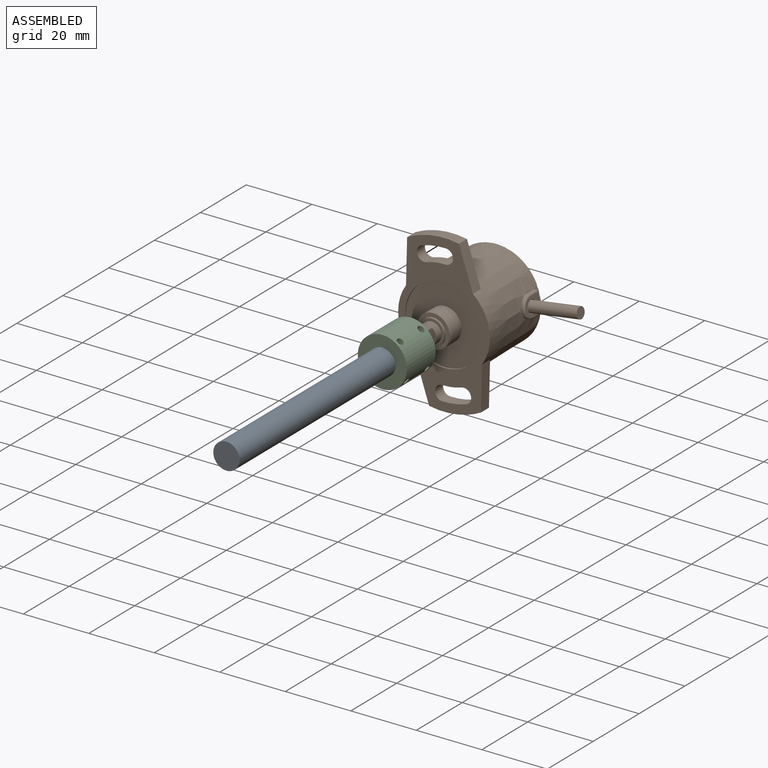
[diagram: assembled view]
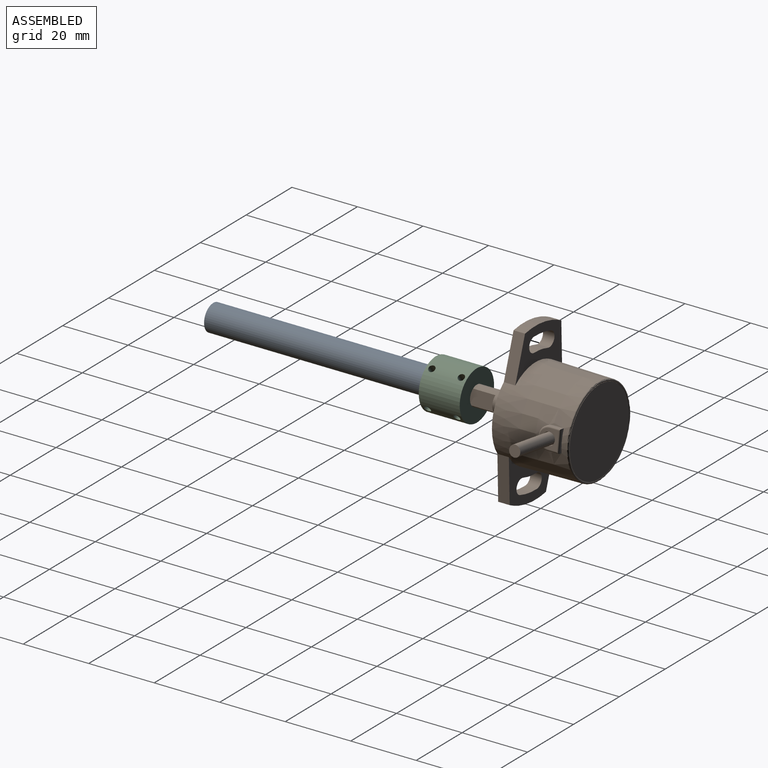
[diagram: assembled view, second angle]
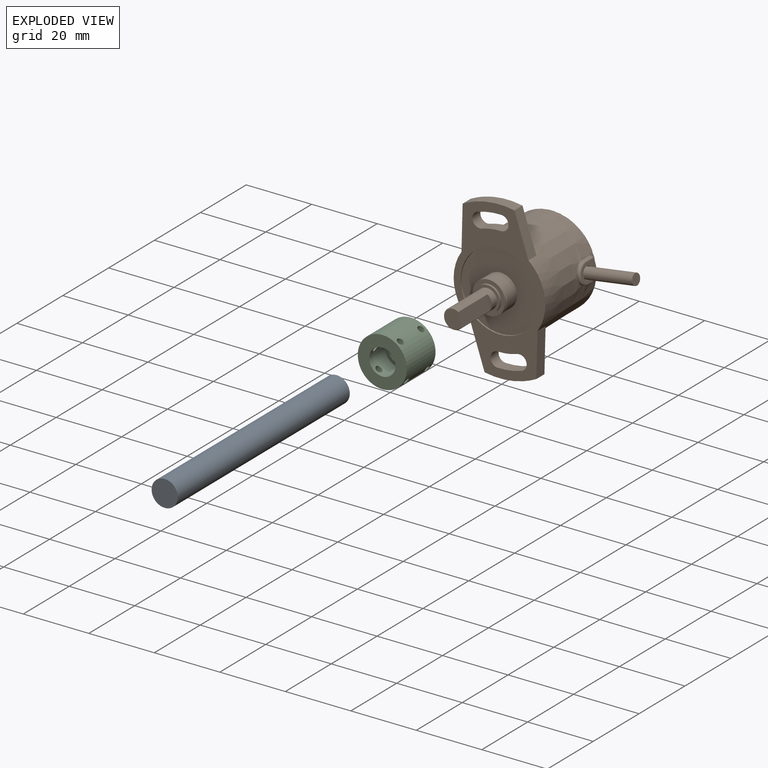
[diagram: exploded view]
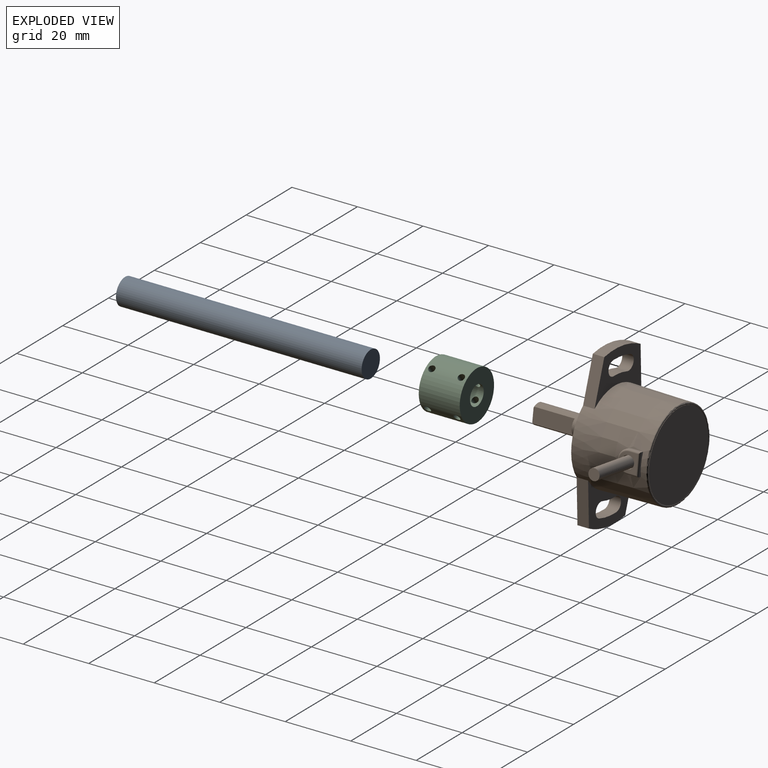
[diagram: exploded view, second angle]
ASSEMBLY  parts=3 mates=2
PART A: 3 faces, bbox 8x75x8 mm
  f0: plane 8x8mm, normal (0,-1,0), area 50.3mm2, adj f2
  f1: plane 8x8mm, normal (0,1,0), area 50.3mm2, adj f2
  f2: cylinder r=4mm len=75mm, axis (0,-1,0), area 1885mm2, adj f0,f1
PART B: 81 faces, bbox 44.5x43.1x48 mm
  f0: cylinder r=1.7mm len=16.66mm, axis (-1,0,0), area 178mm2, adj f1,f32
  f1: plane 3.4x3.4mm, normal (1,0,0), area 9.1mm2, adj f0
  f2: cylinder r=3.24mm len=1.88mm, axis (0,1,0), area 1.8mm2, adj f13,f14,f15,f16,f25,f29
  f3: cylinder r=5mm len=10mm, axis (0,1,0), area 15.7mm2, adj f4,f5
  f4: plane 10x10mm, normal (0,1,0), area 50.3mm2, adj f3,f31
  f5: plane 10x10mm, normal (0,-1,0), area 37.5mm2, adj f3,f7,f8,f9,f10,f11,f12
  f6: plane 1.63x0.86mm, normal (0,1,0), area 0.6mm2, adj f7,f8,f13,f25
  f7: cylinder r=3mm len=6mm, axis (0,1,0), area 1.9mm2, adj f5,f6,f14,f15,f17,f20,f26
  f8: plane 0.9x0.7mm, normal (-0.14,0,0.99), area 0.6mm2, adj f5,f6,f9,f16,f25,f28
  f9: plane 0.7x0.45mm, normal (-0.71,0,0.71), area 0.4mm2, adj f5,f8,f10,f16
  f10: cylinder r=3.8mm len=7.6mm, axis (0,1,0), area 12.5mm2, adj f5,f9,f11,f16
  f11: plane 0.7x0.45mm, normal (-0.71,0,-0.71), area 0.4mm2, adj f5,f10,f12,f16
  f12: plane 0.9x0.7mm, normal (-0.14,0,-0.99), area 0.6mm2, adj f5,f11,f16,f17,f25,f28
  f13: cylinder r=0.7mm len=0.93mm, axis (0,1,0), area 0.9mm2, adj f2,f6,f14,f16,f25,f29
  f14: plane 0.88x0.15mm, normal (0,-1,0), area 0.1mm2, adj f2,f7,f13
  f15: plane 5.92x2.52mm, normal (0,1,0), area 2.9mm2, adj f2,f7,f18,f25
  f16: plane 7.63x6.49mm, normal (0,-1,0), area 12.7mm2, adj f2,f8,f9,f10,f11,f12,f13,f18
  f17: plane 1.63x0.86mm, normal (0,1,0), area 0.6mm2, adj f7,f12,f19,f25
  f18: cylinder r=3.24mm len=1.88mm, axis (0,1,0), area 1.8mm2, adj f15,f16,f19,f20,f25,f30
  f19: cylinder r=0.7mm len=0.93mm, axis (0,1,0), area 0.9mm2, adj f16,f17,f18,f20,f25,f30
  f20: plane 0.88x0.15mm, normal (0,-1,0), area 0.1mm2, adj f7,f18,f19
  f21: plane 5.6x4.8mm, normal (0,-1,0), area 22.5mm2, adj f22,f24
  f22: cone r=3mm half-angle=45deg, axis (0,1,0), area 3.8mm2, adj f21,f24,f27
  f23: plane 4.47x1mm, normal (0,-1,0), area 3.1mm2, adj f24,f27
  f24: plane 12.51x4.48mm, normal (1,0,0), area 55.8mm2, adj f21,f22,f23,f27
  f25: cylinder r=2.5mm len=5mm, axis (0,1,0), area 9.6mm2, adj f2,f6,f8,f12,f13,f15,f17,f18
  f26: plane 6x6mm, normal (0,-1,0), area 8.6mm2, adj f7,f25
  f27: cylinder r=3mm len=14.55mm, axis (0,-1,0), area 212.2mm2, adj f16,f22,f23,f24,f28,f29,f30
  f28: plane 4.42x1.66mm, normal (0,1,0), area 2.5mm2, adj f8,f12,f25,f27
  f29: plane 2.81x1.66mm, normal (0,1,0), area 1mm2, adj f2,f13,f25,f27
  f30: plane 2.81x1.66mm, normal (0,1,0), area 1mm2, adj f18,f19,f25,f27
  f31: cylinder r=3mm len=6mm, axis (0,-1,0), area 0.9mm2, adj f4,f80
  f32: cylinder r=13mm len=3.48mm, axis (0,1,0), area -0.2mm2, adj f0,f34
  f33: plane 26x26mm, normal (0,1,0), area 531mm2, adj f35
  f34: cone r=1.85mm half-angle=9.5deg, axis (1,0,0), area 8.2mm2, adj f32,f36
  f35: cylinder r=13mm len=26mm, axis (0,1,0), area 6.2mm2, adj f33,f37
  f36: cylinder r=1.85mm len=3.7mm, axis (-1,0,0), area 11.6mm2, adj f34,f38
  f37: torus R=13.2mm, axis (0,-1,0), area 18mm2, adj f35,f39
  f38: plane 5.6x5.6mm, normal (1,0,0), area 17.2mm2, adj f36,f44,f45,f46,f47
  f39: plane 26.73x26.73mm, normal (0,1,0), area 13.7mm2, adj f37,f48
  f40: cylinder r=13mm len=1.9mm, axis (0,1,0), area 2.9mm2, adj f49
  f41: cylinder r=13mm len=1.9mm, axis (0,1,0), area 2.9mm2, adj f50
  f42: cylinder r=13mm len=1.9mm, axis (0,1,0), area 3.2mm2, adj f51
  f43: cylinder r=13mm len=1.9mm, axis (0,1,0), area 3.2mm2, adj f52
  f44: torus R=2.8mm, axis (-1,0,0), area 7.7mm2, adj f38,f45,f47,f53
  f45: cylinder r=0.5mm len=3.3mm, axis (0,-1,0), area 2.4mm2, adj f38,f44,f46,f54
  f46: cylinder r=0.5mm len=6.6mm, axis (0,0,1), area 4.8mm2, adj f38,f45,f47,f55
  f47: cylinder r=0.5mm len=3.3mm, axis (0,1,0), area 2.4mm2, adj f38,f44,f46,f56
  f48: torus R=13.37mm, axis (0,1,0), area 39.7mm2, adj f39,f57
  f49: cylinder r=0.95mm len=1.9mm, axis (1,0,0), area 4.7mm2, adj f40,f57
  f50: cylinder r=0.95mm len=1.9mm, axis (1,0,0), area 4.7mm2, adj f41,f57
  f51: cylinder r=0.95mm len=1.9mm, axis (1,0,0), area 5.2mm2, adj f42,f57
  f52: cylinder r=0.95mm len=1.9mm, axis (1,0,0), area 5.2mm2, adj f43,f57
  f53: cylinder r=3.3mm len=6.6mm, axis (1,0,0), area 6mm2, adj f44,f54,f56,f57
  f54: plane 3.3x0.87mm, normal (0,0,1), area 2.8mm2, adj f45,f53,f55,f57
  f55: plane 6.6x0.87mm, normal (0,1,0), area 4mm2, adj f46,f54,f56,f57
  f56: plane 3.3x0.87mm, normal (0,0,-1), area 2.8mm2, adj f47,f53,f55,f57
  f57: cone r=14mm half-angle=1deg, axis (0,-1,0), area 1616.4mm2, adj f48,f49,f50,f51,f52,f53,f54,f55
  f58: plane 23.8x23.8mm, normal (0,-1,0), area 366.3mm2, adj f68,f78
  f59: plane 20.65x14.54mm, normal (0,1,0), area 145.4mm2, adj f62,f63,f64,f65,f69,f70,f71,f72
  f60: plane 20.65x14.54mm, normal (0,1,0), area 145.4mm2, adj f61,f65,f66,f67,f73,f74,f75,f76
  f61: plane 13.17x3.5mm, normal (0.98,0,-0.17), area 46.8mm2, adj f60,f65,f67,f77
  f62: plane 13.17x3.5mm, normal (0.98,0,0.17), area 46.8mm2, adj f59,f63,f65,f77
  f63: cylinder r=24mm len=16mm, axis (0,-1,0), area 57.1mm2, adj f59,f62,f64,f77
  f64: plane 13.17x3.5mm, normal (-0.98,0,0.17), area 46.8mm2, adj f59,f63,f65,f77
  f65: cylinder r=14mm len=28mm, axis (0,-1,0), area 147.3mm2, adj f57,f59,f60,f61,f62,f64,f66,f77
  f66: plane 13.17x3.5mm, normal (-0.98,0,-0.17), area 46.8mm2, adj f60,f65,f67,f77
  f67: cylinder r=24mm len=16mm, axis (0,-1,0), area 57.1mm2, adj f60,f61,f66,f77
  f68: cylinder r=11.9mm len=23.8mm, axis (0,1,0), area 37.4mm2, adj f58,f77
  f69: cylinder r=2.25mm len=4.47mm, axis (0,-1,0), area 24.7mm2, adj f59,f70,f72,f77
  f70: cylinder r=16.75mm len=5.82mm, axis (0,1,0), area 20.5mm2, adj f59,f69,f71,f77
  f71: cylinder r=2.25mm len=4.47mm, axis (0,-1,0), area 24.7mm2, adj f59,f70,f72,f77
  f72: cylinder r=21.25mm len=7.38mm, axis (0,1,0), area 26mm2, adj f59,f69,f71,f77
  f73: cylinder r=21.25mm len=7.38mm, axis (0,1,0), area 26mm2, adj f60,f74,f76,f77
  f74: cylinder r=2.25mm len=4.47mm, axis (0,-1,0), area 24.7mm2, adj f60,f73,f75,f77
  f75: cylinder r=16.75mm len=5.82mm, axis (0,1,0), area 20.5mm2, adj f60,f74,f76,f77
  f76: cylinder r=2.25mm len=4.47mm, axis (0,-1,0), area 24.7mm2, adj f60,f73,f75,f77
  f77: plane 48x28mm, normal (0,-1,0), area 461.7mm2, adj f61,f62,f63,f64,f65,f66,f67,f68
  f78: cylinder r=5mm len=10mm, axis (0,-1,0), area 135.1mm2, adj f58,f79
  f79: cone r=5mm half-angle=45deg, axis (0,1,0), area 12.9mm2, adj f78,f80
  f80: plane 9.4x9.4mm, normal (0,-1,0), area 41.1mm2, adj f31,f79
PART C: 14 faces, bbox 15x12.5x15 mm
  f0: cylinder r=3mm len=6mm, axis (0,-1,0), area 90.9mm2, adj f2,f4,f8,f9,f12,f13
  f1: cylinder r=7.5mm len=15mm, axis (0,1,0), area 563.9mm2, adj f2,f3,f6,f7,f8,f9,f10,f11
  f2: plane 15x15mm, normal (0,-1,0), area 148.4mm2, adj f0,f1
  f3: plane 15x15mm, normal (0,1,0), area 126.4mm2, adj f1,f5
  f4: plane 8x8mm, normal (0,1,0), area 22mm2, adj f0,f5
  f5: cylinder r=4mm len=8mm, axis (0,1,0), area 163.2mm2, adj f3,f4,f6,f7,f10,f11
  f6: cylinder r=1mm len=3.63mm, axis (1,0,0), area 22.2mm2, adj f1,f5
  f7: cylinder r=1mm len=3.63mm, axis (1,0,0), area 22.2mm2, adj f1,f5
  f8: cylinder r=1mm len=4.67mm, axis (1,0,0), area 28.6mm2, adj f0,f1
  f9: cylinder r=1mm len=4.67mm, axis (1,0,0), area 28.6mm2, adj f0,f1
  f10: cylinder r=1mm len=3.63mm, axis (0,0,1), area 22.2mm2, adj f1,f5
  f11: cylinder r=1mm len=3.63mm, axis (0,0,1), area 22.2mm2, adj f1,f5
  f12: cylinder r=1mm len=4.67mm, axis (0,0,1), area 28.6mm2, adj f0,f1
  f13: cylinder r=1mm len=4.67mm, axis (0,0,1), area 28.6mm2, adj f0,f1
PLACE A rot(axis=(0,-1,0),145.1deg) t=(0,37.5,0)mm
PLACE B rot(axis=(0,-1,0),8.5deg) t=(0,94.9,0)mm
PLACE C rot(axis=(0.95,0,-0.3),180deg) t=(0,74.25,0)mm
MATE cylindrical B.f22 <-> C.f0  axis (0,-1,0) through (0,75,0)mm
MATE fastened C.f0 <-> A.f2  axis (0,-1,0) through (0,75,0)mm
